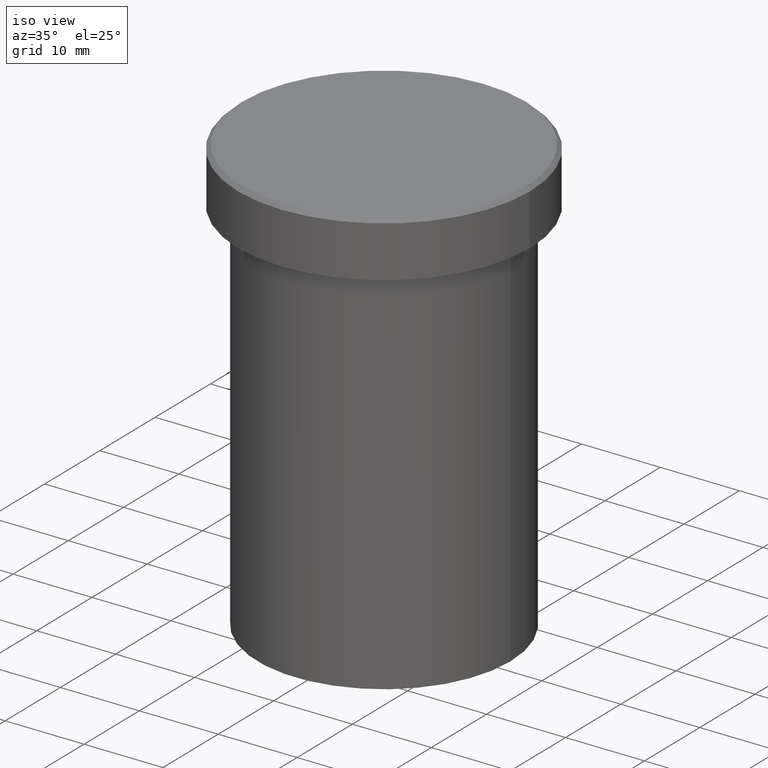
[diagram: clean part render]
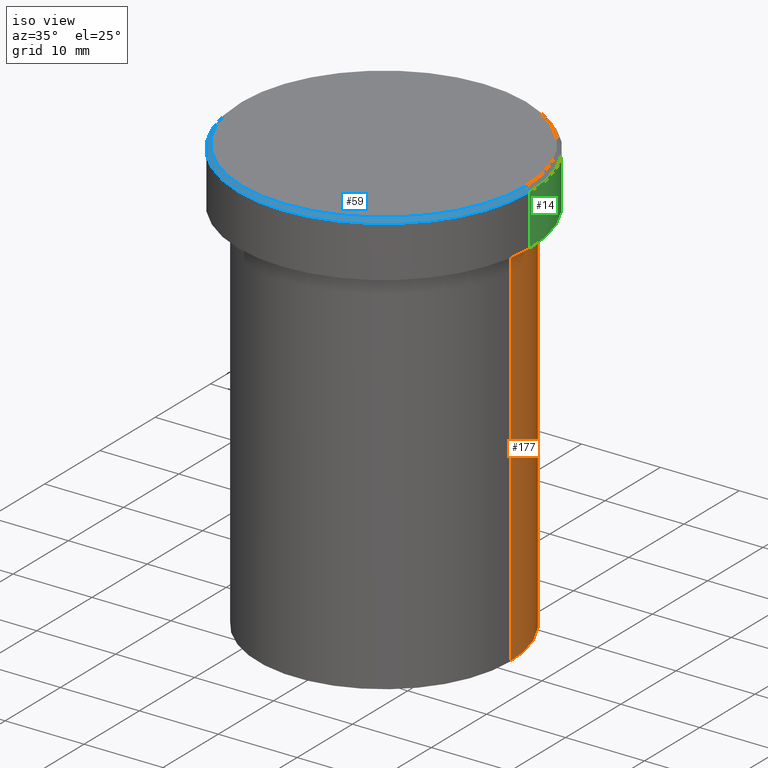
[diagram: same view with three faces highlighted in distinct colors, each labeled with its STEP entity id]
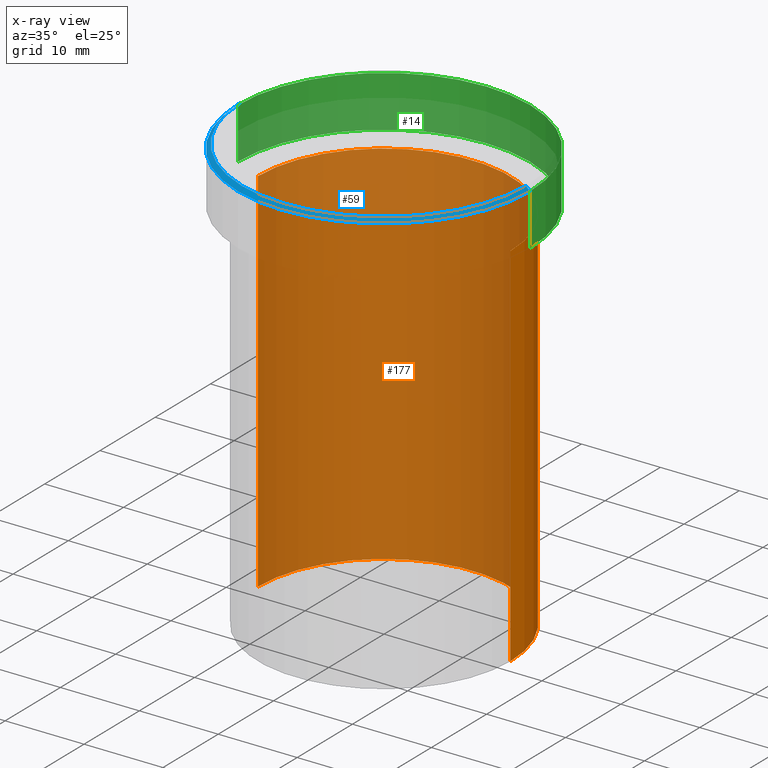
[diagram: x-ray of the same camera — body ghosted, the three highlighted faces saturated]
A machine part, iso view with three faces highlighted in distinct colors.
The next image is the same camera in x-ray (body ghosted, the three faces saturated) — at least one of them is partly hidden behind the body in this view.
Their STEP definitions:

[orange] entity #177 — the highlighted cylindrical surface (partial cylindrical patch) has radius 16 mm, axis along (-0, -0, 1).
#3 = CARTESIAN_POINT ( 'NONE',  ( 16.00000000000000000, 0.000000000000000000, -8.000000000000000000 ) ) ;
#4 = CARTESIAN_POINT ( 'NONE',  ( -16.00000000000000000, 1.959434878635765131E-15, -8.000000000000000000 ) ) ;
#6 = FACE_OUTER_BOUND ( 'NONE', #265, .T. ) ;
#46 = VERTEX_POINT ( 'NONE', #357 ) ;
#50 = VECTOR ( 'NONE', #223, 1000.000000000000000 ) ;
#54 = ORIENTED_EDGE ( 'NONE', *, *, #304, .F. ) ;
#66 = EDGE_CURVE ( 'NONE', #155, #153, #286, .T. ) ;
#67 = DIRECTION ( 'NONE',  ( 1.000000000000000000, 0.000000000000000000, 0.000000000000000000 ) ) ;
#87 = ORIENTED_EDGE ( 'NONE', *, *, #332, .F. ) ;
#92 = DIRECTION ( 'NONE',  ( -0.000000000000000000, -0.000000000000000000, 1.000000000000000000 ) ) ;
#99 = DIRECTION ( 'NONE',  ( -0.000000000000000000, -0.000000000000000000, 1.000000000000000000 ) ) ;
#113 = EDGE_CURVE ( 'NONE', #46, #155, #191, .T. ) ;
#129 = CYLINDRICAL_SURFACE ( 'NONE', #319, 16.00000000000000000 ) ;
#133 = VERTEX_POINT ( 'NONE', #3 ) ;
#137 = DIRECTION ( 'NONE',  ( -0.000000000000000000, -0.000000000000000000, 1.000000000000000000 ) ) ;
#153 = VERTEX_POINT ( 'NONE', #4 ) ;
#155 = VERTEX_POINT ( 'NONE', #251 ) ;
#166 = CARTESIAN_POINT ( 'NONE',  ( 0.000000000000000000, 0.000000000000000000, -8.000000000000000000 ) ) ;
#177 = ADVANCED_FACE ( 'NONE', ( #6 ), #129, .T. ) ;
#191 = CIRCLE ( 'NONE', #300, 16.00000000000000000 ) ;
#202 = LINE ( 'NONE', #389, #372 ) ;
#216 = DIRECTION ( 'NONE',  ( 1.000000000000000000, 0.000000000000000000, 0.000000000000000000 ) ) ;
#223 = DIRECTION ( 'NONE',  ( -0.000000000000000000, -0.000000000000000000, 1.000000000000000000 ) ) ;
#230 = DIRECTION ( 'NONE',  ( 1.000000000000000000, 0.000000000000000000, 0.000000000000000000 ) ) ;
#239 = AXIS2_PLACEMENT_3D ( 'NONE', #166, #137, #230 ) ;
#251 = CARTESIAN_POINT ( 'NONE',  ( -16.00000000000000000, 1.959434878635765131E-15, -54.99999999999999289 ) ) ;
#265 = EDGE_LOOP ( 'NONE', ( #345, #405, #54, #87 ) ) ;
#286 = LINE ( 'NONE', #350, #50 ) ;
#290 = DIRECTION ( 'NONE',  ( -0.000000000000000000, -0.000000000000000000, 1.000000000000000000 ) ) ;
#300 = AXIS2_PLACEMENT_3D ( 'NONE', #316, #92, #216 ) ;
#304 = EDGE_CURVE ( 'NONE', #133, #153, #368, .T. ) ;
#316 = CARTESIAN_POINT ( 'NONE',  ( 0.000000000000000000, 0.000000000000000000, -54.99999999999999289 ) ) ;
#319 = AXIS2_PLACEMENT_3D ( 'NONE', #381, #99, #67 ) ;
#332 = EDGE_CURVE ( 'NONE', #46, #133, #202, .T. ) ;
#345 = ORIENTED_EDGE ( 'NONE', *, *, #113, .T. ) ;
#350 = CARTESIAN_POINT ( 'NONE',  ( -16.00000000000000000, 1.959434878635765131E-15, 0.000000000000000000 ) ) ;
#357 = CARTESIAN_POINT ( 'NONE',  ( 16.00000000000000000, 0.000000000000000000, -54.99999999999999289 ) ) ;
#368 = CIRCLE ( 'NONE', #239, 16.00000000000000000 ) ;
#372 = VECTOR ( 'NONE', #290, 1000.000000000000000 ) ;
#381 = CARTESIAN_POINT ( 'NONE',  ( 0.000000000000000000, 0.000000000000000000, 0.000000000000000000 ) ) ;
#389 = CARTESIAN_POINT ( 'NONE',  ( 16.00000000000000000, 0.000000000000000000, 0.000000000000000000 ) ) ;
#405 = ORIENTED_EDGE ( 'NONE', *, *, #66, .T. ) ;

[blue] entity #59 — the highlighted conical surface has half-angle 45 deg.
#2 = VECTOR ( 'NONE', #23, 1000.000000000000114 ) ;
#5 = EDGE_LOOP ( 'NONE', ( #224, #128, #217, #188 ) ) ;
#23 = DIRECTION ( 'NONE',  ( 0.7071067811865500152, 8.659560562354962440E-17, -0.7071067811865451302 ) ) ;
#24 = CIRCLE ( 'NONE', #382, 18.50000000000000000 ) ;
#56 = FACE_OUTER_BOUND ( 'NONE', #5, .T. ) ;
#59 = ADVANCED_FACE ( 'NONE', ( #56 ), #360, .T. ) ;
#62 = VERTEX_POINT ( 'NONE', #86 ) ;
#79 = CARTESIAN_POINT ( 'NONE',  ( 17.99999999999998224, 2.204364238465233456E-15, 0.000000000000000000 ) ) ;
#84 = DIRECTION ( 'NONE',  ( 0.000000000000000000, 0.000000000000000000, -1.000000000000000000 ) ) ;
#86 = CARTESIAN_POINT ( 'NONE',  ( -17.99999999999998224, 0.000000000000000000, 0.000000000000000000 ) ) ;
#101 = DIRECTION ( 'NONE',  ( 1.000000000000000000, 0.000000000000000000, 0.000000000000000000 ) ) ;
#104 = CARTESIAN_POINT ( 'NONE',  ( 0.000000000000000000, 0.000000000000000000, -0.5000000000000143219 ) ) ;
#117 = CARTESIAN_POINT ( 'NONE',  ( 18.50000000000000000, 0.000000000000000000, -0.5000000000000143219 ) ) ;
#128 = ORIENTED_EDGE ( 'NONE', *, *, #257, .F. ) ;
#171 = CARTESIAN_POINT ( 'NONE',  ( 17.99999999999998224, 2.234980408443918426E-15, 0.000000000000000000 ) ) ;
#174 = CARTESIAN_POINT ( 'NONE',  ( -17.99999999999998224, 0.000000000000000000, 0.000000000000000000 ) ) ;
#186 = VERTEX_POINT ( 'NONE', #261 ) ;
#188 = ORIENTED_EDGE ( 'NONE', *, *, #284, .F. ) ;
#198 = CARTESIAN_POINT ( 'NONE',  ( 0.000000000000000000, 0.000000000000000000, 0.000000000000000000 ) ) ;
#206 = DIRECTION ( 'NONE',  ( -0.7071067811865500152, 0.000000000000000000, -0.7071067811865451302 ) ) ;
#217 = ORIENTED_EDGE ( 'NONE', *, *, #387, .T. ) ;
#224 = ORIENTED_EDGE ( 'NONE', *, *, #361, .F. ) ;
#228 = DIRECTION ( 'NONE',  ( -0.000000000000000000, -0.000000000000000000, 1.000000000000000000 ) ) ;
#229 = AXIS2_PLACEMENT_3D ( 'NONE', #271, #84, #245 ) ;
#235 = DIRECTION ( 'NONE',  ( 1.000000000000000000, 0.000000000000000000, 0.000000000000000000 ) ) ;
#241 = LINE ( 'NONE', #174, #270 ) ;
#245 = DIRECTION ( 'NONE',  ( -1.000000000000000000, 0.000000000000000000, 0.000000000000000000 ) ) ;
#257 = EDGE_CURVE ( 'NONE', #62, #340, #328, .T. ) ;
#261 = CARTESIAN_POINT ( 'NONE',  ( -18.50000000000000000, 2.265596578422603396E-15, -0.5000000000000143219 ) ) ;
#270 = VECTOR ( 'NONE', #206, 1000.000000000000114 ) ;
#271 = CARTESIAN_POINT ( 'NONE',  ( 0.000000000000000000, 0.000000000000000000, 0.000000000000000000 ) ) ;
#284 = EDGE_CURVE ( 'NONE', #377, #186, #24, .T. ) ;
#328 = CIRCLE ( 'NONE', #343, 17.99999999999998224 ) ;
#330 = DIRECTION ( 'NONE',  ( 0.000000000000000000, 0.000000000000000000, -1.000000000000000000 ) ) ;
#338 = LINE ( 'NONE', #79, #2 ) ;
#340 = VERTEX_POINT ( 'NONE', #171 ) ;
#343 = AXIS2_PLACEMENT_3D ( 'NONE', #198, #228, #101 ) ;
#360 = CONICAL_SURFACE ( 'NONE', #229, 17.99999999999998224, 0.7853981633974517207 ) ;
#361 = EDGE_CURVE ( 'NONE', #340, #377, #338, .T. ) ;
#377 = VERTEX_POINT ( 'NONE', #117 ) ;
#382 = AXIS2_PLACEMENT_3D ( 'NONE', #104, #330, #235 ) ;
#387 = EDGE_CURVE ( 'NONE', #62, #186, #241, .T. ) ;

[green] entity #14 — the highlighted cylindrical surface (partial cylindrical patch) has radius 18.5 mm, axis along (-0, -0, 1).
#1 = VERTEX_POINT ( 'NONE', #240 ) ;
#14 = ADVANCED_FACE ( 'NONE', ( #80 ), #208, .T. ) ;
#25 = EDGE_CURVE ( 'NONE', #1, #186, #380, .T. ) ;
#49 = CARTESIAN_POINT ( 'NONE',  ( 0.000000000000000000, 0.000000000000000000, -6.999999999999998224 ) ) ;
#53 = DIRECTION ( 'NONE',  ( 1.000000000000000000, 0.000000000000000000, 0.000000000000000000 ) ) ;
#80 = FACE_OUTER_BOUND ( 'NONE', #288, .T. ) ;
#96 = EDGE_CURVE ( 'NONE', #269, #377, #323, .T. ) ;
#97 = AXIS2_PLACEMENT_3D ( 'NONE', #49, #175, #147 ) ;
#110 = AXIS2_PLACEMENT_3D ( 'NONE', #310, #344, #53 ) ;
#117 = CARTESIAN_POINT ( 'NONE',  ( 18.50000000000000000, 0.000000000000000000, -0.5000000000000143219 ) ) ;
#135 = DIRECTION ( 'NONE',  ( 0.000000000000000000, 0.000000000000000000, -1.000000000000000000 ) ) ;
#147 = DIRECTION ( 'NONE',  ( 1.000000000000000000, 0.000000000000000000, 0.000000000000000000 ) ) ;
#156 = DIRECTION ( 'NONE',  ( -0.000000000000000000, -0.000000000000000000, 1.000000000000000000 ) ) ;
#157 = DIRECTION ( 'NONE',  ( -0.000000000000000000, -0.000000000000000000, 1.000000000000000000 ) ) ;
#161 = VECTOR ( 'NONE', #156, 1000.000000000000000 ) ;
#163 = CARTESIAN_POINT ( 'NONE',  ( 0.000000000000000000, 0.000000000000000000, -0.5000000000000143219 ) ) ;
#175 = DIRECTION ( 'NONE',  ( -0.000000000000000000, -0.000000000000000000, 1.000000000000000000 ) ) ;
#186 = VERTEX_POINT ( 'NONE', #261 ) ;
#192 = CIRCLE ( 'NONE', #376, 18.50000000000000000 ) ;
#194 = ORIENTED_EDGE ( 'NONE', *, *, #276, .T. ) ;
#208 = CYLINDRICAL_SURFACE ( 'NONE', #110, 18.50000000000000000 ) ;
#219 = CARTESIAN_POINT ( 'NONE',  ( -18.50000000000000000, 2.265596578422603396E-15, 0.000000000000000000 ) ) ;
#240 = CARTESIAN_POINT ( 'NONE',  ( -18.50000000000000000, 2.265596578422603396E-15, -6.999999999999998224 ) ) ;
#261 = CARTESIAN_POINT ( 'NONE',  ( -18.50000000000000000, 2.265596578422603396E-15, -0.5000000000000143219 ) ) ;
#263 = CIRCLE ( 'NONE', #97, 18.50000000000000000 ) ;
#269 = VERTEX_POINT ( 'NONE', #395 ) ;
#272 = ORIENTED_EDGE ( 'NONE', *, *, #96, .F. ) ;
#276 = EDGE_CURVE ( 'NONE', #186, #377, #192, .T. ) ;
#277 = CARTESIAN_POINT ( 'NONE',  ( 18.50000000000000000, 0.000000000000000000, 0.000000000000000000 ) ) ;
#281 = ORIENTED_EDGE ( 'NONE', *, *, #25, .T. ) ;
#288 = EDGE_LOOP ( 'NONE', ( #401, #281, #194, #272 ) ) ;
#310 = CARTESIAN_POINT ( 'NONE',  ( 0.000000000000000000, 0.000000000000000000, 0.000000000000000000 ) ) ;
#323 = LINE ( 'NONE', #277, #371 ) ;
#344 = DIRECTION ( 'NONE',  ( -0.000000000000000000, -0.000000000000000000, 1.000000000000000000 ) ) ;
#371 = VECTOR ( 'NONE', #157, 1000.000000000000000 ) ;
#373 = EDGE_CURVE ( 'NONE', #269, #1, #263, .T. ) ;
#376 = AXIS2_PLACEMENT_3D ( 'NONE', #163, #135, #386 ) ;
#377 = VERTEX_POINT ( 'NONE', #117 ) ;
#380 = LINE ( 'NONE', #219, #161 ) ;
#386 = DIRECTION ( 'NONE',  ( 1.000000000000000000, 0.000000000000000000, 0.000000000000000000 ) ) ;
#395 = CARTESIAN_POINT ( 'NONE',  ( 18.50000000000000000, 0.000000000000000000, -6.999999999999998224 ) ) ;
#401 = ORIENTED_EDGE ( 'NONE', *, *, #373, .T. ) ;